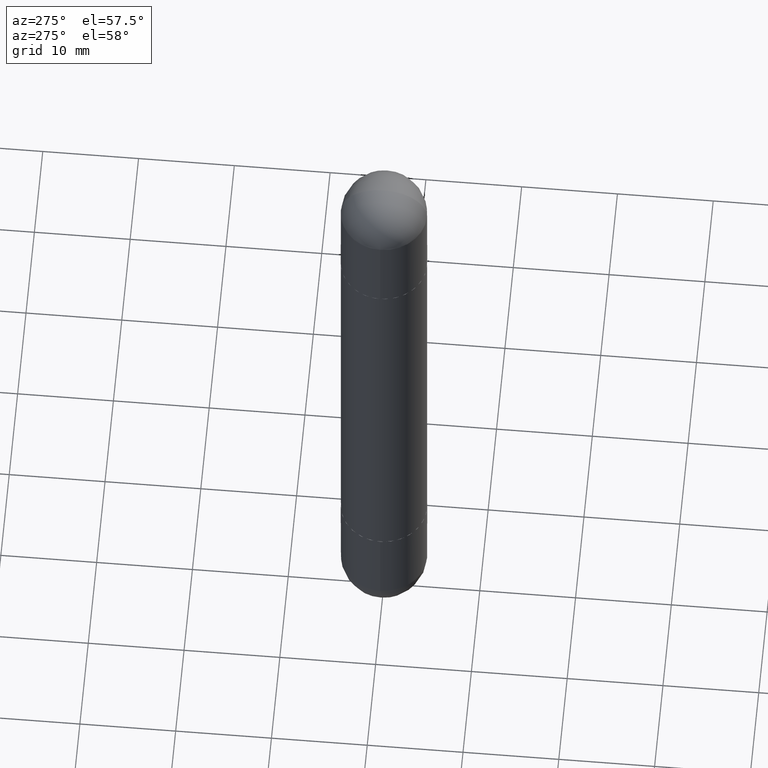
[diagram: clean part render]
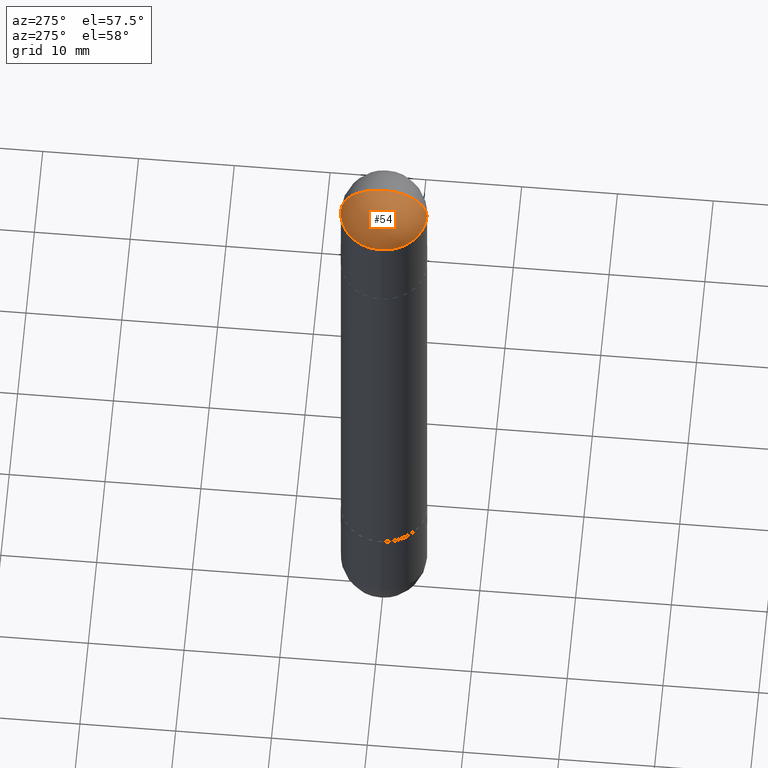
[diagram: same view with one face highlighted and labeled with its STEP entity id]
A machine part, auxiliary view. The second image highlights one B-rep face of the part: STEP entity #54.
In plain terms, the highlighted spherical surface has radius 4.4996 mm.
Its self-contained STEP definition (entity closure, byte-faithful):
#8 = AXIS2_PLACEMENT_3D ( 'NONE', #677, #547, #250 ) ;
#28 = CARTESIAN_POINT ( 'NONE',  ( 6.787765491887772680E-29, -9.691130178159974964E-15, -0.1771500000000000574 ) ) ;
#50 = EDGE_CURVE ( 'NONE', #610, #723, #512, .T. ) ;
#54 = ADVANCED_FACE ( 'NONE', ( #499 ), #289, .T. ) ;
#93 = CIRCLE ( 'NONE', #192, 0.1771500000000000019 ) ;
#128 = DIRECTION ( 'NONE',  ( 2.445468806185136597E-29, -3.491481338843145583E-15, 1.000000000000000000 ) ) ;
#192 = AXIS2_PLACEMENT_3D ( 'NONE', #382, #128, #814 ) ;
#225 = EDGE_CURVE ( 'NONE', #514, #723, #639, .T. ) ;
#238 = DIRECTION ( 'NONE',  ( 1.000000000000000000, -6.860497997771530774E-15, -4.840798879624142912E-29 ) ) ;
#250 = DIRECTION ( 'NONE',  ( 6.982962677686265922E-15, 1.000000000000000000, 3.469747663417772269E-15 ) ) ;
#271 = DIRECTION ( 'NONE',  ( 2.445468806185136597E-29, -3.491481338843145583E-15, 1.000000000000000000 ) ) ;
#289 = SPHERICAL_SURFACE ( 'NONE', #8, 0.1771500000000002517 ) ;
#294 = CIRCLE ( 'NONE', #366, 0.1771500000000002517 ) ;
#341 = CARTESIAN_POINT ( 'NONE',  ( -1.215337220305161228E-15, -0.1771500000000100772, -0.1771500000000006680 ) ) ;
#344 = EDGE_LOOP ( 'NONE', ( #653, #718, #397, #736 ) ) ;
#356 = DIRECTION ( 'NONE',  ( -6.982962677686265922E-15, -1.000000000000000000, 0.000000000000000000 ) ) ;
#362 = AXIS2_PLACEMENT_3D ( 'NONE', #812, #238, #553 ) ;
#366 = AXIS2_PLACEMENT_3D ( 'NONE', #664, #612, #356 ) ;
#375 = AXIS2_PLACEMENT_3D ( 'NONE', #28, #271, #779 ) ;
#378 = EDGE_CURVE ( 'NONE', #652, #514, #93, .T. ) ;
#382 = CARTESIAN_POINT ( 'NONE',  ( 6.787765491887772680E-29, -9.691130178159974964E-15, -0.1771500000000000574 ) ) ;
#397 = ORIENTED_EDGE ( 'NONE', *, *, #378, .T. ) ;
#499 = FACE_OUTER_BOUND ( 'NONE', #344, .T. ) ;
#512 = CIRCLE ( 'NONE', #362, 0.1771500000000002517 ) ;
#514 = VERTEX_POINT ( 'NONE', #576 ) ;
#547 = DIRECTION ( 'NONE',  ( 1.000000000000000000, -6.982962677686265922E-15, -4.883557194083112340E-29 ) ) ;
#553 = DIRECTION ( 'NONE',  ( 6.860497997771531562E-15, 1.000000000000000000, 0.000000000000000000 ) ) ;
#576 = CARTESIAN_POINT ( 'NONE',  ( -0.1771500000000000019, -7.822798660457609805E-15, -0.1771500000000000574 ) ) ;
#583 = CARTESIAN_POINT ( 'NONE',  ( 1.237031838352189250E-15, 0.1771499999999902042, -0.1771499999999994468 ) ) ;
#610 = VERTEX_POINT ( 'NONE', #656 ) ;
#612 = DIRECTION ( 'NONE',  ( -1.000000000000000000, 6.982962677686265922E-15, 4.883557194083112340E-29 ) ) ;
#639 = CIRCLE ( 'NONE', #375, 0.1771500000000000019 ) ;
#652 = VERTEX_POINT ( 'NONE', #583 ) ;
#653 = ORIENTED_EDGE ( 'NONE', *, *, #50, .F. ) ;
#656 = CARTESIAN_POINT ( 'NONE',  ( 6.897435148395990892E-29, -1.077298115645264157E-14, 2.048885995248197414E-16 ) ) ;
#664 = CARTESIAN_POINT ( 'NONE',  ( 6.456645713973887554E-29, -1.016531254630002526E-14, -0.1771500000000000574 ) ) ;
#677 = CARTESIAN_POINT ( 'NONE',  ( 6.456645713973887554E-29, -1.016531254630002526E-14, -0.1771500000000000574 ) ) ;
#712 = EDGE_CURVE ( 'NONE', #610, #652, #294, .T. ) ;
#718 = ORIENTED_EDGE ( 'NONE', *, *, #712, .T. ) ;
#723 = VERTEX_POINT ( 'NONE', #341 ) ;
#736 = ORIENTED_EDGE ( 'NONE', *, *, #225, .T. ) ;
#779 = DIRECTION ( 'NONE',  ( 1.000000000000000000, -6.982962677686272233E-15, 0.000000000000000000 ) ) ;
#812 = CARTESIAN_POINT ( 'NONE',  ( 6.456645713973887554E-29, -1.016531254630002526E-14, -0.1771500000000000574 ) ) ;
#814 = DIRECTION ( 'NONE',  ( 1.000000000000000000, -6.982962677686272233E-15, 0.000000000000000000 ) ) ;